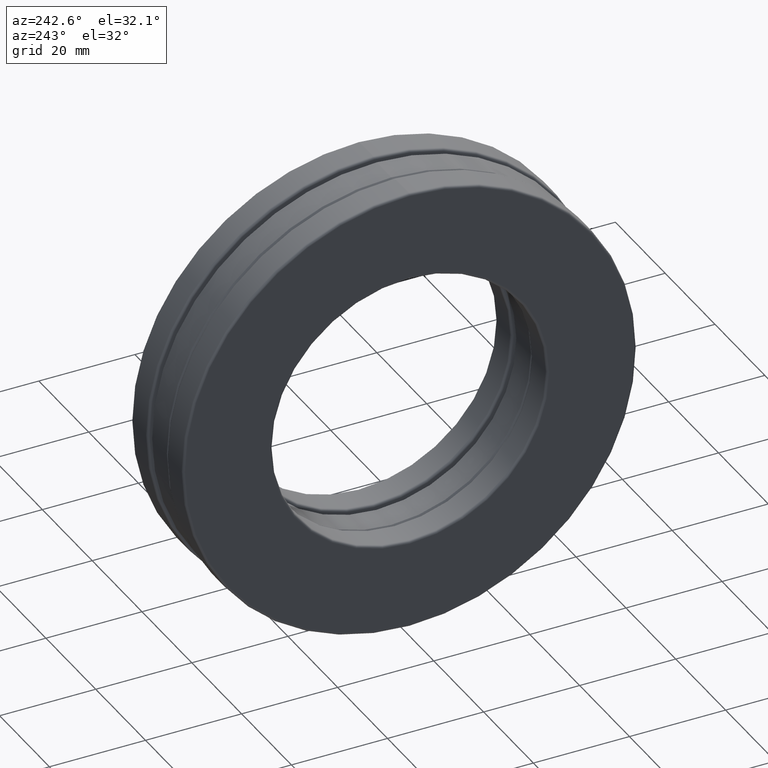
[diagram: clean part render]
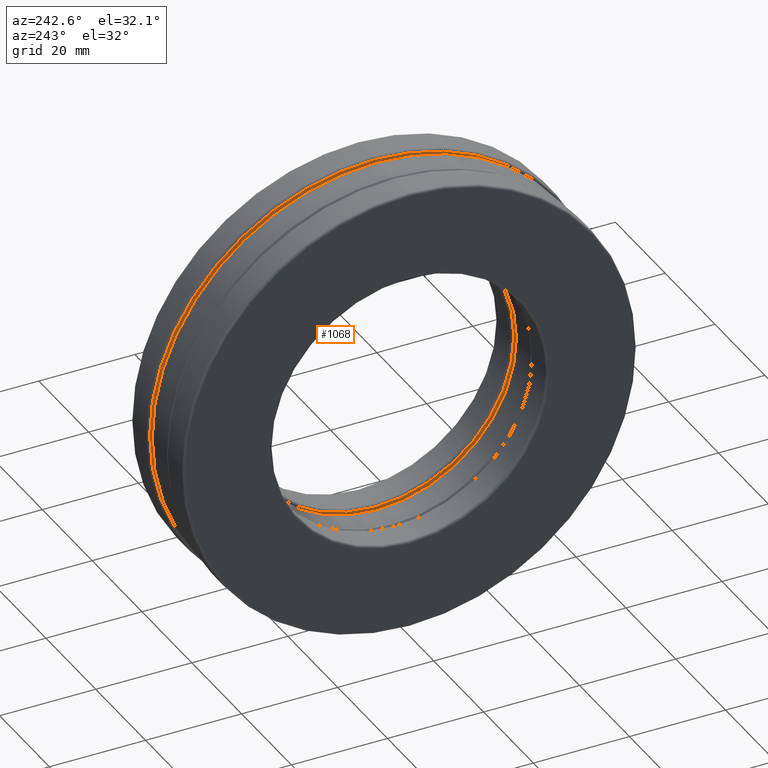
[diagram: same view with one face highlighted and labeled with its STEP entity id]
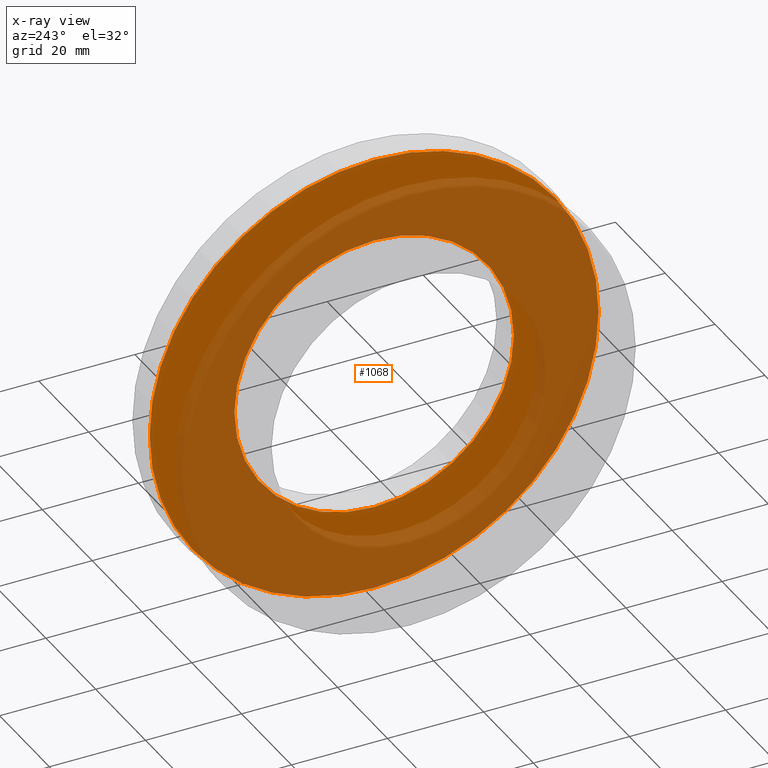
[diagram: x-ray of the same camera — body ghosted, the highlighted face saturated]
A machine part, auxiliary view. The second image highlights one B-rep face of the part: STEP entity #1068.
The next image is the same camera in x-ray: the body ghosted, the highlighted face saturated — about 68% of this face is hidden behind the body in this view.
In plain terms, the highlighted planar face has unit normal (1, 0, 0).
Its self-contained STEP definition (entity closure, byte-faithful):
#10 = EDGE_CURVE ( 'NONE', #398, #398, #833, .T. ) ;
#50 = DIRECTION ( 'NONE',  ( 0.0000000000000000000, 0.0000000000000000000, 1.000000000000000000 ) ) ;
#85 = AXIS2_PLACEMENT_3D ( 'NONE', #1305, #1080, #1316 ) ;
#111 = DIRECTION ( 'NONE',  ( 0.0000000000000000000, 0.0000000000000000000, 1.000000000000000000 ) ) ;
#148 = AXIS2_PLACEMENT_3D ( 'NONE', #669, #796, #111 ) ;
#189 = DIRECTION ( 'NONE',  ( -1.000000000000000000, -0.0000000000000000000, -0.0000000000000000000 ) ) ;
#303 = PLANE ( 'NONE',  #85 ) ;
#361 = VERTEX_POINT ( 'NONE', #453 ) ;
#398 = VERTEX_POINT ( 'NONE', #767 ) ;
#453 = CARTESIAN_POINT ( 'NONE',  ( 0.1560000000000000300, 0.0000000000000000000, 1.145000000000000000 ) ) ;
#459 = AXIS2_PLACEMENT_3D ( 'NONE', #1428, #189, #50 ) ;
#669 = CARTESIAN_POINT ( 'NONE',  ( 0.1560000000000000000, 0.0000000000000000000, 0.0000000000000000000 ) ) ;
#679 = EDGE_CURVE ( 'NONE', #361, #361, #973, .T. ) ;
#745 = FACE_OUTER_BOUND ( 'NONE', #857, .T. ) ;
#757 = ORIENTED_EDGE ( 'NONE', *, *, #679, .F. ) ;
#767 = CARTESIAN_POINT ( 'NONE',  ( 0.1560000000000000000, 0.0000000000000000000, 1.839375000000000600 ) ) ;
#796 = DIRECTION ( 'NONE',  ( -1.000000000000000000, -0.0000000000000000000, -0.0000000000000000000 ) ) ;
#833 = CIRCLE ( 'NONE', #148, 1.839375000000000600 ) ;
#857 = EDGE_LOOP ( 'NONE', ( #920 ) ) ;
#920 = ORIENTED_EDGE ( 'NONE', *, *, #10, .T. ) ;
#973 = CIRCLE ( 'NONE', #459, 1.145000000000000000 ) ;
#992 = EDGE_LOOP ( 'NONE', ( #757 ) ) ;
#1068 = ADVANCED_FACE ( 'NONE', ( #1216, #745 ), #303, .F. ) ;
#1080 = DIRECTION ( 'NONE',  ( 1.000000000000000000, 0.0000000000000000000, 0.0000000000000000000 ) ) ;
#1216 = FACE_BOUND ( 'NONE', #992, .T. ) ;
#1305 = CARTESIAN_POINT ( 'NONE',  ( 0.1560000000000000000, 7.671796345843834500E-018, 0.0000000000000000000 ) ) ;
#1316 = DIRECTION ( 'NONE',  ( 0.0000000000000000000, 0.0000000000000000000, -1.000000000000000000 ) ) ;
#1428 = CARTESIAN_POINT ( 'NONE',  ( 0.1560000000000000300, 0.0000000000000000000, 0.0000000000000000000 ) ) ;